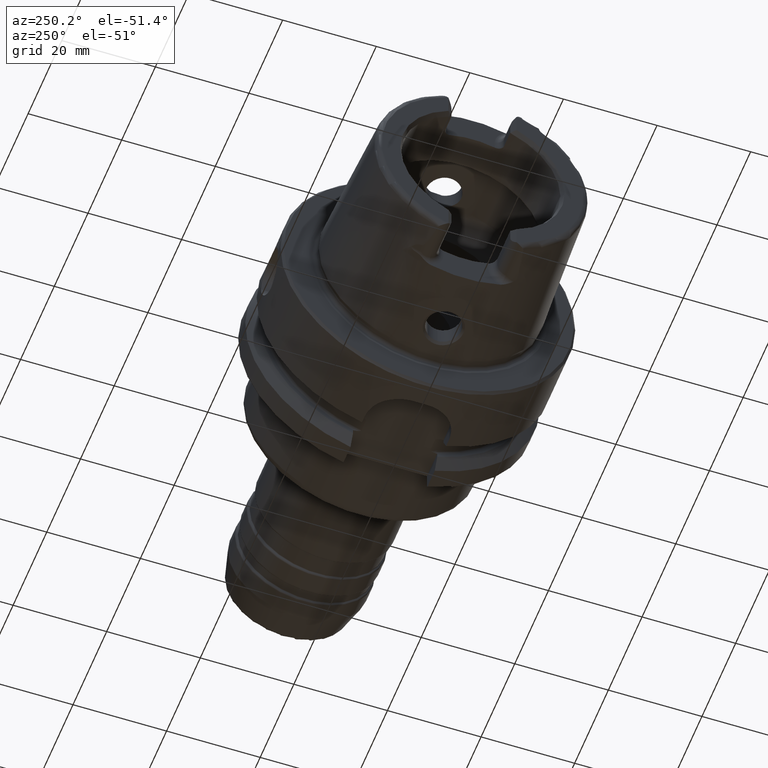
[diagram: clean part render]
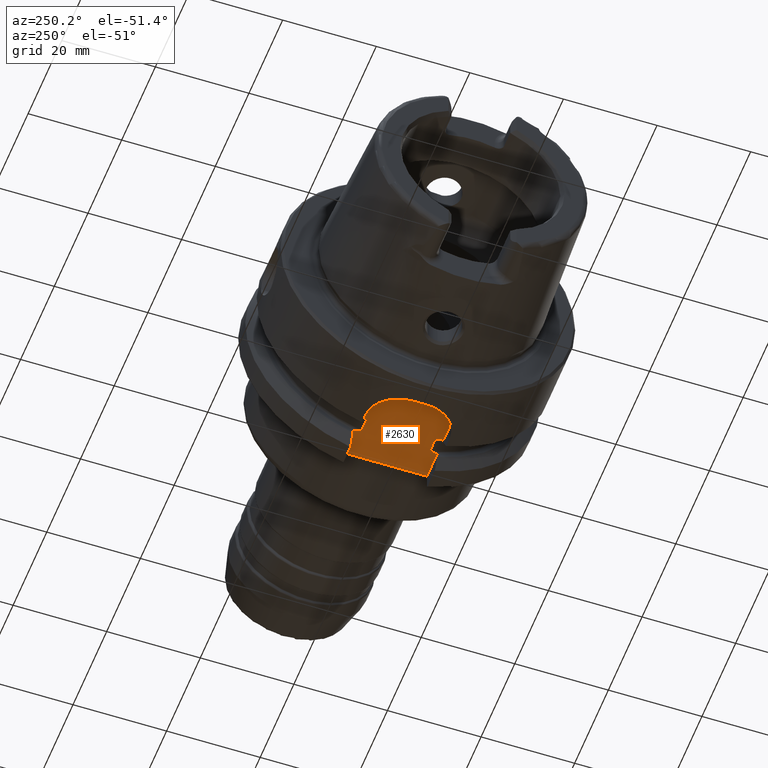
[diagram: same view with one face highlighted and labeled with its STEP entity id]
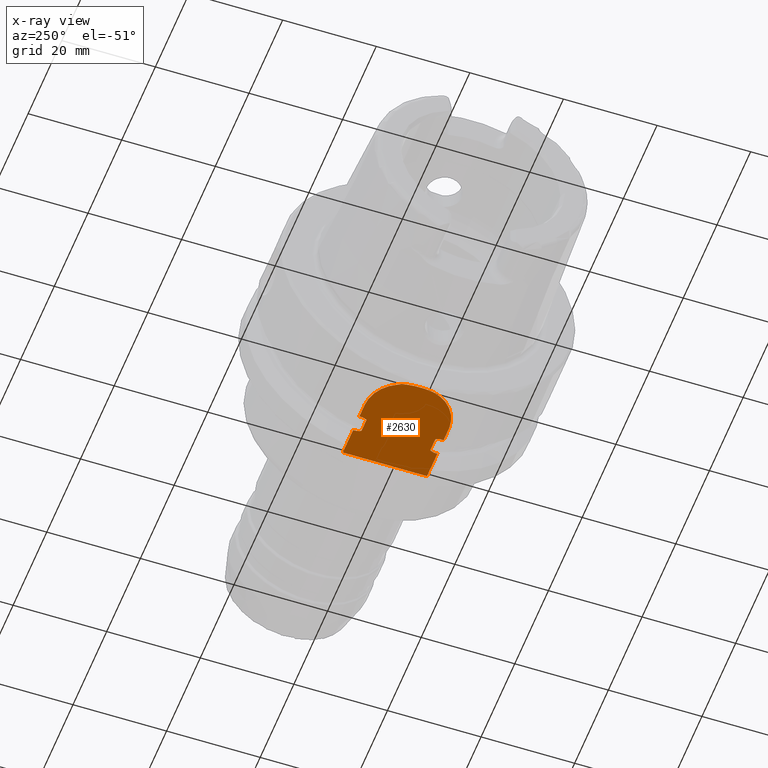
[diagram: x-ray of the same camera — body ghosted, the highlighted face saturated]
A machine part, auxiliary view. The second image highlights one B-rep face of the part: STEP entity #2630.
The next image is the same camera in x-ray: the body ghosted, the highlighted face saturated — about 0% of this face is hidden behind the body in this view.
In plain terms, the highlighted planar face has unit normal (0, 0, 1).
Its self-contained STEP definition (entity closure, byte-faithful):
#67=B_SPLINE_CURVE_WITH_KNOTS('',3,(#5170,#5171,#5172,#5173,#5174,#5175,
#5176,#5177,#5178,#5179),.UNSPECIFIED.,.F.,.F.,(4,2,2,2,4),(0.15835931245442,
0.289228035148658,0.316691561230897,0.323545183976989,0.328785692776271),
 .UNSPECIFIED.);
#68=B_SPLINE_CURVE_WITH_KNOTS('',3,(#5191,#5192,#5193,#5194,#5195,#5196,
#5197,#5198,#5199,#5200),.UNSPECIFIED.,.F.,.F.,(4,2,2,2,4),(0.328785692776271,
0.334026201575553,0.340879824321645,0.368343350403884,0.499212073098123),
 .UNSPECIFIED.);
#69=B_SPLINE_CURVE_WITH_KNOTS('',3,(#5203,#5204,#5205,#5206,#5207,#5208,
#5209,#5210,#5211,#5212),.UNSPECIFIED.,.F.,.F.,(4,2,2,2,4),(0.15835931245442,
0.289228035148658,0.316691561230897,0.323545183976988,0.32878569277627),
 .UNSPECIFIED.);
#70=B_SPLINE_CURVE_WITH_KNOTS('',3,(#5214,#5215,#5216,#5217,#5218,#5219,
#5220,#5221,#5222,#5223),.UNSPECIFIED.,.F.,.F.,(4,2,2,2,4),(0.32878569277627,
0.334026201575552,0.340879824321644,0.368343350403882,0.49921207309812),
 .UNSPECIFIED.);
#165=PLANE('',#2949);
#276=FACE_OUTER_BOUND('',#420,.T.);
#420=EDGE_LOOP('',(#2154,#2155,#2156,#2157,#2158,#2159,#2160,#2161,#2162,
#2163,#2164,#2165,#2166,#2167));
#496=LINE('',#4041,#613);
#560=LINE('',#5124,#677);
#562=LINE('',#5154,#679);
#565=LINE('',#5181,#682);
#566=LINE('',#5185,#683);
#567=LINE('',#5189,#684);
#568=LINE('',#5202,#685);
#569=LINE('',#5224,#686);
#613=VECTOR('',#3195,10.);
#677=VECTOR('',#3627,10.);
#679=VECTOR('',#3631,10.);
#682=VECTOR('',#3636,10.);
#683=VECTOR('',#3639,10.);
#684=VECTOR('',#3642,10.);
#685=VECTOR('',#3643,10.);
#686=VECTOR('',#3644,10.);
#878=CIRCLE('',#2950,8.);
#879=CIRCLE('',#2951,8.);
#985=VERTEX_POINT('',#4038);
#986=VERTEX_POINT('',#4040);
#1163=VERTEX_POINT('',#5119);
#1167=VERTEX_POINT('',#5153);
#1171=VERTEX_POINT('',#5168);
#1172=VERTEX_POINT('',#5169);
#1173=VERTEX_POINT('',#5180);
#1174=VERTEX_POINT('',#5182);
#1175=VERTEX_POINT('',#5184);
#1176=VERTEX_POINT('',#5186);
#1177=VERTEX_POINT('',#5188);
#1178=VERTEX_POINT('',#5190);
#1179=VERTEX_POINT('',#5201);
#1180=VERTEX_POINT('',#5213);
#1291=EDGE_CURVE('',#985,#986,#496,.T.);
#1524=EDGE_CURVE('',#1163,#985,#560,.T.);
#1529=EDGE_CURVE('',#986,#1167,#562,.T.);
#1534=EDGE_CURVE('',#1171,#1172,#67,.T.);
#1535=EDGE_CURVE('',#1173,#1171,#565,.T.);
#1536=EDGE_CURVE('',#1174,#1173,#878,.T.);
#1537=EDGE_CURVE('',#1175,#1174,#566,.T.);
#1538=EDGE_CURVE('',#1176,#1175,#879,.T.);
#1539=EDGE_CURVE('',#1177,#1176,#567,.T.);
#1540=EDGE_CURVE('',#1178,#1177,#68,.T.);
#1541=EDGE_CURVE('',#1179,#1178,#568,.T.);
#1542=EDGE_CURVE('',#1167,#1179,#69,.T.);
#1543=EDGE_CURVE('',#1180,#1163,#70,.T.);
#1544=EDGE_CURVE('',#1172,#1180,#569,.T.);
#2154=ORIENTED_EDGE('',*,*,#1534,.F.);
#2155=ORIENTED_EDGE('',*,*,#1535,.F.);
#2156=ORIENTED_EDGE('',*,*,#1536,.F.);
#2157=ORIENTED_EDGE('',*,*,#1537,.F.);
#2158=ORIENTED_EDGE('',*,*,#1538,.F.);
#2159=ORIENTED_EDGE('',*,*,#1539,.F.);
#2160=ORIENTED_EDGE('',*,*,#1540,.F.);
#2161=ORIENTED_EDGE('',*,*,#1541,.F.);
#2162=ORIENTED_EDGE('',*,*,#1542,.F.);
#2163=ORIENTED_EDGE('',*,*,#1529,.F.);
#2164=ORIENTED_EDGE('',*,*,#1291,.F.);
#2165=ORIENTED_EDGE('',*,*,#1524,.F.);
#2166=ORIENTED_EDGE('',*,*,#1543,.F.);
#2167=ORIENTED_EDGE('',*,*,#1544,.F.);
#2630=ADVANCED_FACE('',(#276),#165,.F.);
#2949=AXIS2_PLACEMENT_3D('',#5167,#3634,#3635);
#2950=AXIS2_PLACEMENT_3D('',#5183,#3637,#3638);
#2951=AXIS2_PLACEMENT_3D('',#5187,#3640,#3641);
#3195=DIRECTION('',(0.,1.,0.));
#3627=DIRECTION('',(1.,-2.56205313375036E-16,0.));
#3631=DIRECTION('',(-1.,2.56205313375036E-16,0.));
#3634=DIRECTION('center_axis',(0.,0.,1.));
#3635=DIRECTION('ref_axis',(1.,0.,0.));
#3636=DIRECTION('',(1.,-2.56205313375036E-16,0.));
#3637=DIRECTION('center_axis',(0.,0.,1.));
#3638=DIRECTION('ref_axis',(-1.,-2.42861286636753E-16,0.));
#3639=DIRECTION('',(0.,-1.,0.));
#3640=DIRECTION('center_axis',(0.,0.,1.));
#3641=DIRECTION('ref_axis',(0.,1.,0.));
#3642=DIRECTION('',(-1.,2.56205313375036E-16,0.));
#3643=DIRECTION('',(-1.,0.,0.));
#3644=DIRECTION('',(1.,0.,0.));
#4038=CARTESIAN_POINT('',(26.,-9.,-26.5));
#4040=CARTESIAN_POINT('',(26.,9.,-26.5));
#4041=CARTESIAN_POINT('',(26.,1.94289029309402E-15,-26.5));
#5119=CARTESIAN_POINT('',(19.8748205133158,-9.,-26.5));
#5124=CARTESIAN_POINT('',(13.,-9.,-26.5));
#5153=CARTESIAN_POINT('',(19.8748205133158,9.,-26.5));
#5154=CARTESIAN_POINT('',(26.,9.,-26.5));
#5167=CARTESIAN_POINT('Origin',(15.5,3.88578058618805E-15,-26.5));
#5168=CARTESIAN_POINT('',(16.1251794866842,-9.,-26.5));
#5169=CARTESIAN_POINT('',(16.625,-7.34846922834952,-26.5));
#5170=CARTESIAN_POINT('Ctrl Pts',(16.1251794866842,-9.,-26.5));
#5171=CARTESIAN_POINT('Ctrl Pts',(16.12898241235,-8.55877260788573,-26.5));
#5172=CARTESIAN_POINT('Ctrl Pts',(16.1819334034884,-8.04136347440828,-26.5));
#5173=CARTESIAN_POINT('Ctrl Pts',(16.3906456489289,-7.5566112023157,-26.5));
#5174=CARTESIAN_POINT('Ctrl Pts',(16.4411490019356,-7.4590543697872,-26.5));
#5175=CARTESIAN_POINT('Ctrl Pts',(16.5270295504762,-7.38349170057081,-26.5));
#5176=CARTESIAN_POINT('Ctrl Pts',(16.5496994821687,-7.36807649661538,-26.5));
#5177=CARTESIAN_POINT('Ctrl Pts',(16.587038394856,-7.35287762173868,-26.5));
#5178=CARTESIAN_POINT('Ctrl Pts',(16.6075316373357,-7.34846922834952,-26.5));
#5179=CARTESIAN_POINT('Ctrl Pts',(16.625,-7.34846922834952,-26.5));
#5180=CARTESIAN_POINT('',(13.,-9.,-26.5));
#5181=CARTESIAN_POINT('',(13.,-9.,-26.5));
#5182=CARTESIAN_POINT('',(5.,-0.999999999999999,-26.5));
#5183=CARTESIAN_POINT('Origin',(13.,-0.999999999999997,-26.5));
#5184=CARTESIAN_POINT('',(5.,1.,-26.5));
#5185=CARTESIAN_POINT('',(5.,1.,-26.5));
#5186=CARTESIAN_POINT('',(13.,9.00000000000001,-26.5));
#5187=CARTESIAN_POINT('Origin',(13.,1.,-26.5));
#5188=CARTESIAN_POINT('',(16.1251794866842,9.,-26.5));
#5189=CARTESIAN_POINT('',(26.,9.,-26.5));
#5190=CARTESIAN_POINT('',(16.625,7.34846922834952,-26.5));
#5191=CARTESIAN_POINT('Ctrl Pts',(16.625,7.34846922834952,-26.5));
#5192=CARTESIAN_POINT('Ctrl Pts',(16.6075316373357,7.34846922834952,-26.5));
#5193=CARTESIAN_POINT('Ctrl Pts',(16.587038394856,7.35287762173868,-26.5));
#5194=CARTESIAN_POINT('Ctrl Pts',(16.5496994821687,7.36807649661538,-26.5));
#5195=CARTESIAN_POINT('Ctrl Pts',(16.5270295504762,7.38349170057081,-26.5));
#5196=CARTESIAN_POINT('Ctrl Pts',(16.4411490019356,7.4590543697872,-26.5));
#5197=CARTESIAN_POINT('Ctrl Pts',(16.3906456489289,7.5566112023157,-26.5));
#5198=CARTESIAN_POINT('Ctrl Pts',(16.1819334034884,8.04136347440828,-26.5));
#5199=CARTESIAN_POINT('Ctrl Pts',(16.12898241235,8.55877260788573,-26.5));
#5200=CARTESIAN_POINT('Ctrl Pts',(16.1251794866842,9.,-26.5));
#5201=CARTESIAN_POINT('',(19.375,7.34846922834952,-26.5));
#5202=CARTESIAN_POINT('',(18.,7.34846922834952,-26.5));
#5203=CARTESIAN_POINT('Ctrl Pts',(19.8748205133158,9.,-26.5));
#5204=CARTESIAN_POINT('Ctrl Pts',(19.87101758765,8.55877260788573,-26.5));
#5205=CARTESIAN_POINT('Ctrl Pts',(19.8180665965116,8.04136347440828,-26.5));
#5206=CARTESIAN_POINT('Ctrl Pts',(19.6093543510711,7.5566112023157,-26.5));
#5207=CARTESIAN_POINT('Ctrl Pts',(19.5588509980644,7.45905436978719,-26.5));
#5208=CARTESIAN_POINT('Ctrl Pts',(19.4729704495238,7.38349170057082,-26.5));
#5209=CARTESIAN_POINT('Ctrl Pts',(19.4503005178313,7.3680764966154,-26.5));
#5210=CARTESIAN_POINT('Ctrl Pts',(19.412961605144,7.35287762173869,-26.5));
#5211=CARTESIAN_POINT('Ctrl Pts',(19.3924683626643,7.34846922834952,-26.5));
#5212=CARTESIAN_POINT('Ctrl Pts',(19.375,7.34846922834952,-26.5));
#5213=CARTESIAN_POINT('',(19.375,-7.34846922834952,-26.5));
#5214=CARTESIAN_POINT('Ctrl Pts',(19.375,-7.34846922834952,-26.5));
#5215=CARTESIAN_POINT('Ctrl Pts',(19.3924683626643,-7.34846922834952,-26.5));
#5216=CARTESIAN_POINT('Ctrl Pts',(19.412961605144,-7.35287762173869,-26.5));
#5217=CARTESIAN_POINT('Ctrl Pts',(19.4503005178313,-7.3680764966154,-26.5));
#5218=CARTESIAN_POINT('Ctrl Pts',(19.4729704495238,-7.38349170057082,-26.5));
#5219=CARTESIAN_POINT('Ctrl Pts',(19.5588509980644,-7.45905436978719,-26.5));
#5220=CARTESIAN_POINT('Ctrl Pts',(19.6093543510711,-7.5566112023157,-26.5));
#5221=CARTESIAN_POINT('Ctrl Pts',(19.8180665965116,-8.04136347440828,-26.5));
#5222=CARTESIAN_POINT('Ctrl Pts',(19.87101758765,-8.55877260788573,-26.5));
#5223=CARTESIAN_POINT('Ctrl Pts',(19.8748205133158,-9.,-26.5));
#5224=CARTESIAN_POINT('',(18.,-7.34846922834952,-26.5));